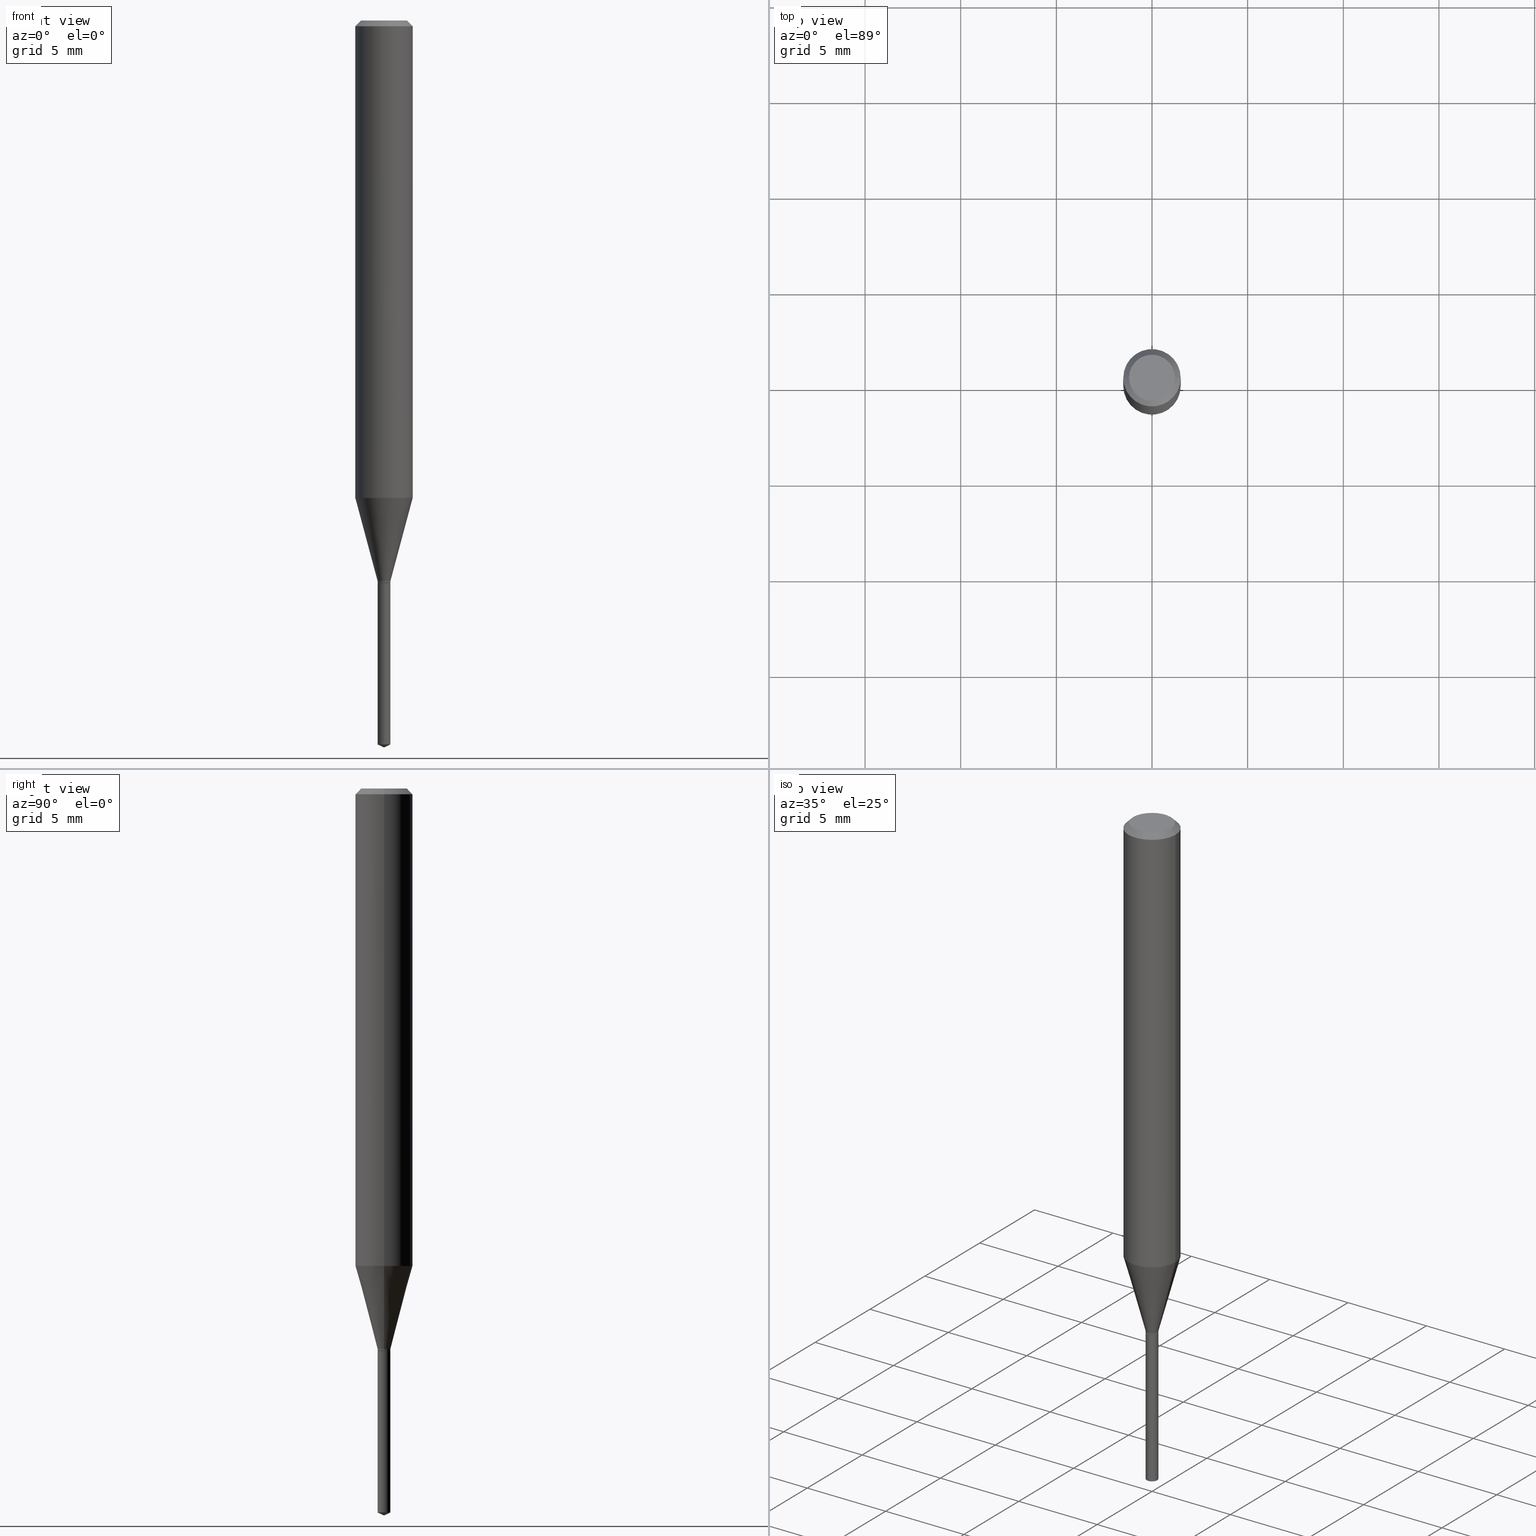
[diagram: canonical four-view strip — front | top / right | iso, engineering-drawing reading convention]
A machine part, canonical four-view strip (front | top / right | iso — engineering-drawing reading convention). The complete STEP part file that produces these views, byte-faithful:
ISO-10303-21;
HEADER;
FILE_DESCRIPTION (( 'STEP AP203' ),
    '1' );
FILE_NAME ('08108.STEP',
    '2024-04-24T11:45:50',
    ( '' ),
    ( '' ),
    'SwSTEP 2.0',
    'SolidWorks 2023',
    '' );
FILE_SCHEMA (( 'CONFIG_CONTROL_DESIGN' ));
ENDSEC;

DATA;
#1 = AXIS2_PLACEMENT_3D ( 'NONE', #486, #143, #264 ) ;
#2 = FACE_OUTER_BOUND ( 'NONE', #477, .T. ) ;
#3 = EDGE_LOOP ( 'NONE', ( #86, #103, #309, #352 ) ) ;
#4 = FACE_OUTER_BOUND ( 'NONE', #380, .T. ) ;
#5 = ORIENTED_EDGE ( 'NONE', *, *, #173, .T. ) ;
#6 = DIRECTION ( 'NONE',  ( -2.445468806185136597E-29, 3.491481338843145583E-15, 1.000000000000000000 ) ) ;
#7 = ORIENTED_EDGE ( 'NONE', *, *, #107, .F. ) ;
#8 = UNCERTAINTY_MEASURE_WITH_UNIT (LENGTH_MEASURE( 1.000000000000000082E-05 ), #432, 'distance_accuracy_value', 'NONE');
#9 = AXIS2_PLACEMENT_3D ( 'NONE', #40, #410, #181 ) ;
#10 = CONICAL_SURFACE ( 'NONE', #247, 84.42940631927504569, 1.134464013796319115 ) ;
#11 = DIRECTION ( 'NONE',  ( -6.982962677686267499E-15, -1.000000000000000000, 3.520397390770424288E-15 ) ) ;
#12 = APPROVAL_PERSON_ORGANIZATION ( #323, #16, #133 ) ;
#13 = AXIS2_PLACEMENT_3D ( 'NONE', #100, #281, #401 ) ;
#14 = VERTEX_POINT ( 'NONE', #363 ) ;
#15 = APPROVAL_STATUS ( 'not_yet_approved' ) ;
#16 = APPROVAL ( #473, 'UNSPECIFIED' ) ;
#17 = EDGE_LOOP ( 'NONE', ( #192, #57 ) ) ;
#18 = DIRECTION ( 'NONE',  ( 2.445468806185136597E-29, -3.491481338843145583E-15, -1.000000000000000000 ) ) ;
#19 = ORIENTED_EDGE ( 'NONE', *, *, #440, .T. ) ;
#20 = DATE_TIME_ROLE ( 'creation_date' ) ;
#21 = VECTOR ( 'NONE', #221, 39.37007874015748143 ) ;
#22 = LINE ( 'NONE', #430, #209 ) ;
#23 = LENGTH_MEASURE_WITH_UNIT ( LENGTH_MEASURE( 0.02539999999999999897 ), #319 );
#24 = DIRECTION ( 'NONE',  ( -2.445468806185136597E-29, 3.491481338843145583E-15, 1.000000000000000000 ) ) ;
#25 = EDGE_LOOP ( 'NONE', ( #158, #449, #89, #260 ) ) ;
#26 = APPLICATION_CONTEXT ( 'configuration controlled 3d designs of mechanical parts and assemblies' ) ;
#27 = CARTESIAN_POINT ( 'NONE',  ( 9.379164112036967186E-17, 0.01319999999999480096, -1.489944738912354127 ) ) ;
#28 = ADVANCED_BREP_SHAPE_REPRESENTATION ( '08108', ( #442, #290, #381 ), #110 ) ;
#29 = PERSON_AND_ORGANIZATION ( #258, #230 ) ;
#30 = CARTESIAN_POINT ( 'NONE',  ( 8.265746106709734507E-48, -1.180129479067563789E-33, -3.380025165646692144E-19 ) ) ;
#31 = EDGE_CURVE ( 'NONE', #371, #271, #225, .T. ) ;
#32 = PERSON_AND_ORGANIZATION_ROLE ( 'classification_officer' ) ;
#33 = CYLINDRICAL_SURFACE ( 'NONE', #65, 0.05905000000000006077 ) ;
#34 = PERSON_AND_ORGANIZATION ( #258, #230 ) ;
#35 = CARTESIAN_POINT ( 'NONE',  ( 0.01319999999999999993, -9.217510734545872876E-17, 6.436553344050634707E-31 ) ) ;
#36 = CONICAL_SURFACE ( 'NONE', #9, 0.01319999999999999993, 0.2617993877991500740 ) ;
#37 = CIRCLE ( 'NONE', #79, 0.05905000000000011628 ) ;
#38 = ADVANCED_FACE ( 'NONE', ( #171 ), #243, .T. ) ;
#39 = FACE_OUTER_BOUND ( 'NONE', #305, .T. ) ;
#40 = CARTESIAN_POINT ( 'NONE',  ( 2.820848267934554903E-29, -4.027423724355568083E-15, -1.153499999999999970 ) ) ;
#41 = CARTESIAN_POINT ( 'NONE',  ( 0.000000000000000000, 0.000000000000000000, 0.000000000000000000 ) ) ;
#42 = EDGE_CURVE ( 'NONE', #14, #433, #22, .T. ) ;
#43 = ORIENTED_EDGE ( 'NONE', *, *, #31, .T. ) ;
#44 = CIRCLE ( 'NONE', #270, 0.01319999999999999993 ) ;
#45 = AXIS2_PLACEMENT_3D ( 'NONE', #332, #327, #404 ) ;
#46 = CARTESIAN_POINT ( 'NONE',  ( 0.01269999999999999775, -4.130073275717555648E-15, -1.157499999999999973 ) ) ;
#47 = EDGE_LOOP ( 'NONE', ( #164, #203, #420, #126 ) ) ;
#48 = CC_DESIGN_PERSON_AND_ORGANIZATION_ASSIGNMENT ( #172, #251, ( #204 ) ) ;
#49 = CARTESIAN_POINT ( 'NONE',  ( 3.643609475682207716E-29, -5.202119845817557536E-15, -1.489944738912354127 ) ) ;
#50 = ORIENTED_EDGE ( 'NONE', *, *, #402, .F. ) ;
#51 = DIRECTION ( 'NONE',  ( -2.445468806185136597E-29, 3.491481338843145583E-15, 1.000000000000000000 ) ) ;
#52 = VERTEX_POINT ( 'NONE', #135 ) ;
#53 = CIRCLE ( 'NONE', #255, 0.01269999999999999775 ) ;
#54 = ADVANCED_FACE ( 'NONE', ( #393 ), #284, .F. ) ;
#55 = CC_DESIGN_APPROVAL ( #340, ( #461 ) ) ;
#56 = DIRECTION ( 'NONE',  ( -6.982962677686265133E-15, -1.000000000000000000, 0.000000000000000000 ) ) ;
#57 = ORIENTED_EDGE ( 'NONE', *, *, #277, .F. ) ;
#58 = CALENDAR_DATE ( 2024, 24, 4 ) ;
#59 = ORIENTED_EDGE ( 'NONE', *, *, #465, .T. ) ;
#60 = CALENDAR_DATE ( 2024, 24, 4 ) ;
#61 = ORIENTED_EDGE ( 'NONE', *, *, #349, .F. ) ;
#62 = CARTESIAN_POINT ( 'NONE',  ( 2.888098660104664204E-31, -4.123439461173780263E-17, -0.01181000000000007218 ) ) ;
#63 = AXIS2_PLACEMENT_3D ( 'NONE', #85, #90, #419 ) ;
#64 = DIRECTION ( 'NONE',  ( -2.445457056059012515E-29, 3.491498165692530705E-15, 1.000000000000000000 ) ) ;
#65 = AXIS2_PLACEMENT_3D ( 'NONE', #405, #483, #341 ) ;
#66 = CARTESIAN_POINT ( 'NONE',  ( -9.261917495037615480E-28, 1.322369467758159045E-13, 37.87397874015748300 ) ) ;
#67 = CARTESIAN_POINT ( 'NONE',  ( 0.04724000000000000421, -3.852183633974369345E-16, -3.380025165621689721E-19 ) ) ;
#68 = EDGE_CURVE ( 'NONE', #106, #197, #174, .T. ) ;
#69 = DIRECTION ( 'NONE',  ( 1.000000000000000000, -6.982962677686266711E-15, 0.000000000000000000 ) ) ;
#70 = EDGE_LOOP ( 'NONE', ( #317, #176, #252, #50 ) ) ;
#71 = SECURITY_CLASSIFICATION_LEVEL ( 'unclassified' ) ;
#72 = EDGE_CURVE ( 'NONE', #91, #318, #320, .T. ) ;
#73 = LINE ( 'NONE', #300, #302 ) ;
#74 = DIRECTION ( 'NONE',  ( -2.445468806185136597E-29, 3.491481338843145583E-15, 1.000000000000000000 ) ) ;
#75 = ORIENTED_EDGE ( 'NONE', *, *, #262, .T. ) ;
#76 = DIRECTION ( 'NONE',  ( 1.000000000000000000, -6.982962677686266711E-15, 4.876176775795935793E-29 ) ) ;
#77 = DIRECTION ( 'NONE',  ( 1.000000000000000000, -6.982962677686266711E-15, 4.876185090822587894E-29 ) ) ;
#78 = CIRCLE ( 'NONE', #391, 0.01319999999999999993 ) ;
#79 = AXIS2_PLACEMENT_3D ( 'NONE', #211, #170, #69 ) ;
#80 = CARTESIAN_POINT ( 'NONE',  ( -9.217510734542229325E-17, -0.01320000000000520410, -1.489944738912354127 ) ) ;
#81 = ADVANCED_FACE ( 'NONE', ( #474 ), #131, .T. ) ;
#82 = CARTESIAN_POINT ( 'NONE',  ( -0.01319999999999999993, -3.939742175578210590E-15, -1.153499999999999970 ) ) ;
#83 = EDGE_LOOP ( 'NONE', ( #59, #210, #348, #426 ) ) ;
#84 = EDGE_CURVE ( 'NONE', #318, #94, #322, .T. ) ;
#85 = CARTESIAN_POINT ( 'NONE',  ( 2.830630143159295633E-29, -4.041389649710940900E-15, -1.157499999999999973 ) ) ;
#86 = ORIENTED_EDGE ( 'NONE', *, *, #42, .F. ) ;
#87 = AXIS2_PLACEMENT_3D ( 'NONE', #293, #74, #77 ) ;
#88 = DIRECTION ( 'NONE',  ( -6.982962677686265133E-15, -1.000000000000000000, 0.000000000000000000 ) ) ;
#89 = ORIENTED_EDGE ( 'NONE', *, *, #84, .T. ) ;
#90 = DIRECTION ( 'NONE',  ( -2.445468806185136597E-29, 3.491481338843145583E-15, 1.000000000000000000 ) ) ;
#91 = VERTEX_POINT ( 'NONE', #67 ) ;
#92 = ADVANCED_FACE ( 'NONE', ( #212 ), #213, .F. ) ;
#93 = DIRECTION ( 'NONE',  ( -2.445468806185136877E-29, 3.491481338843145188E-15, 1.000000000000000000 ) ) ;
#94 = VERTEX_POINT ( 'NONE', #366 ) ;
#95 = VECTOR ( 'NONE', #149, 39.37007874015748854 ) ;
#96 = APPROVAL_ROLE ( '' ) ;
#97 = ORIENTED_EDGE ( 'NONE', *, *, #326, .F. ) ;
#98 = DATE_AND_TIME ( #58, #145 ) ;
#99 = DIRECTION ( 'NONE',  ( -6.982962677686267499E-15, -1.000000000000000000, 3.520397390770424288E-15 ) ) ;
#100 = CARTESIAN_POINT ( 'NONE',  ( 2.830630143159295633E-29, -4.041389649710940900E-15, -1.157499999999999973 ) ) ;
#101 = AXIS2_PLACEMENT_3D ( 'NONE', #335, #439, #342 ) ;
#102 = VECTOR ( 'NONE', #122, 39.37007874015748854 ) ;
#103 = ORIENTED_EDGE ( 'NONE', *, *, #107, .T. ) ;
#104 = AXIS2_PLACEMENT_3D ( 'NONE', #250, #24, #241 ) ;
#105 = MECHANICAL_CONTEXT ( 'NONE', #314, 'mechanical' ) ;
#106 = VERTEX_POINT ( 'NONE', #27 ) ;
#107 = EDGE_CURVE ( 'NONE', #14, #312, #399, .T. ) ;
#108 = DIRECTION ( 'NONE',  ( 1.000000000000000000, -6.982962677686250144E-15, 0.000000000000000000 ) ) ;
#109 = CARTESIAN_POINT ( 'NONE',  ( 2.830630143159295633E-29, -4.041389649710940900E-15, -1.157499999999999973 ) ) ;
#110 =( GEOMETRIC_REPRESENTATION_CONTEXT ( 3 ) GLOBAL_UNCERTAINTY_ASSIGNED_CONTEXT ( ( #8 ) ) GLOBAL_UNIT_ASSIGNED_CONTEXT ( ( #432, #476, #469 ) ) REPRESENTATION_CONTEXT ( 'NONE', 'WORKASPACE' ) );
#111 = AXIS2_PLACEMENT_3D ( 'NONE', #329, #288, #438 ) ;
#112 = CARTESIAN_POINT ( 'NONE',  ( 0.000000000000000000, 0.000000000000000000, 0.000000000000000000 ) ) ;
#113 = DIRECTION ( 'NONE',  ( 1.000000000000000000, -6.982962677686266711E-15, 0.000000000000000000 ) ) ;
#114 = CARTESIAN_POINT ( 'NONE',  ( 0.05905000000000011628, -3.842324483824382352E-15, -0.9823854704729667597 ) ) ;
#115 = LOCAL_TIME ( 7, 45, 50.00000000000000000, #482 ) ;
#116 = CARTESIAN_POINT ( 'NONE',  ( 2.830630143159295633E-29, -4.041389649710940900E-15, -1.157499999999999973 ) ) ;
#117 = DIRECTION ( 'NONE',  ( 1.000000000000000000, -6.982962677686252511E-15, 0.000000000000000000 ) ) ;
#118 = ORIENTED_EDGE ( 'NONE', *, *, #411, .T. ) ;
#119 = LINE ( 'NONE', #46, #102 ) ;
#120 = ORIENTED_EDGE ( 'NONE', *, *, #256, .F. ) ;
#121 = CONICAL_SURFACE ( 'NONE', #152, 0.01269999999999999775, 0.7853981633974141952 ) ;
#122 = DIRECTION ( 'NONE',  ( 0.7071067811865232589, -2.468850131082003836E-15, 0.7071067811865715536 ) ) ;
#123 = EDGE_CURVE ( 'NONE', #472, #433, #168, .T. ) ;
#124 = EDGE_LOOP ( 'NONE', ( #428, #279, #75, #357 ) ) ;
#125 = DIRECTION ( 'NONE',  ( -2.445457056059012515E-29, 3.491498165692530705E-15, 1.000000000000000000 ) ) ;
#126 = ORIENTED_EDGE ( 'NONE', *, *, #440, .F. ) ;
#127 = ORIENTED_EDGE ( 'NONE', *, *, #378, .F. ) ;
#128 = ADVANCED_FACE ( 'NONE', ( #227 ), #33, .T. ) ;
#129 = APPROVAL_DATE_TIME ( #98, #372 ) ;
#130 = AXIS2_PLACEMENT_3D ( 'NONE', #299, #178, #113 ) ;
#131 = CYLINDRICAL_SURFACE ( 'NONE', #13, 0.01319999999999999993 ) ;
#132 = EDGE_CURVE ( 'NONE', #195, #106, #353, .T. ) ;
#133 = APPROVAL_ROLE ( '' ) ;
#134 = DIRECTION ( 'NONE',  ( -2.445468806185136877E-29, 3.491481338843145188E-15, 1.000000000000000000 ) ) ;
#135 = CARTESIAN_POINT ( 'NONE',  ( -0.01269999999999999775, -3.948501495095296659E-15, -1.157499999999999973 ) ) ;
#136 = AXIS2_PLACEMENT_3D ( 'NONE', #289, #489, #108 ) ;
#137 = ORIENTED_EDGE ( 'NONE', *, *, #179, .F. ) ;
#138 = ADVANCED_FACE ( 'NONE', ( #39 ), #36, .T. ) ;
#139 = CARTESIAN_POINT ( 'NONE',  ( -0.01319999999999999993, -3.933632083235234933E-15, -1.153499999999999970 ) ) ;
#140 = CALENDAR_DATE ( 2024, 24, 4 ) ;
#141 = DIRECTION ( 'NONE',  ( 1.000000000000000000, -6.982962677686266711E-15, 4.876185090822587894E-29 ) ) ;
#142 = DATE_AND_TIME ( #140, #437 ) ;
#143 = DIRECTION ( 'NONE',  ( -2.445468806185136597E-29, 3.491481338843145583E-15, 1.000000000000000000 ) ) ;
#144 = CONICAL_SURFACE ( 'NONE', #337, 0.05904999999999999832, 0.7853981633974452814 ) ;
#145 = LOCAL_TIME ( 7, 45, 50.00000000000000000, #240 ) ;
#146 = CALENDAR_DATE ( 2024, 24, 4 ) ;
#147 = FACE_OUTER_BOUND ( 'NONE', #339, .T. ) ;
#148 = APPROVAL_STATUS ( 'not_yet_approved' ) ;
#149 = DIRECTION ( 'NONE',  ( -6.328713451373382789E-15, -0.9063077870366504918, 0.4226182617406981090 ) ) ;
#150 = EDGE_LOOP ( 'NONE', ( #183, #408, #396, #231 ) ) ;
#151 = DIRECTION ( 'NONE',  ( 1.000000000000000000, -6.982962677686267499E-15, 4.876176775795935232E-29 ) ) ;
#152 = AXIS2_PLACEMENT_3D ( 'NONE', #116, #422, #194 ) ;
#153 = EDGE_CURVE ( 'NONE', #94, #318, #414, .T. ) ;
#154 = CC_DESIGN_APPROVAL ( #16, ( #383 ) ) ;
#155 = CARTESIAN_POINT ( 'NONE',  ( -0.01269999999999999775, -3.951150722269407860E-15, -1.157499999999999973 ) ) ;
#156 = ORIENTED_EDGE ( 'NONE', *, *, #202, .T. ) ;
#157 = CARTESIAN_POINT ( 'NONE',  ( 2.830630143159295633E-29, -4.041389649710940900E-15, -1.157499999999999973 ) ) ;
#158 = ORIENTED_EDGE ( 'NONE', *, *, #193, .F. ) ;
#159 = CARTESIAN_POINT ( 'NONE',  ( 0.000000000000000000, 0.000000000000000000, 0.000000000000000000 ) ) ;
#160 = ORIENTED_EDGE ( 'NONE', *, *, #256, .T. ) ;
#161 = CARTESIAN_POINT ( 'NONE',  ( -0.05905000000000011628, -3.010405052240667150E-15, -0.9823854704729667597 ) ) ;
#162 = ORIENTED_EDGE ( 'NONE', *, *, #132, .F. ) ;
#163 = CARTESIAN_POINT ( 'NONE',  ( 0.000000000000000000, 0.000000000000000000, 0.000000000000000000 ) ) ;
#164 = ORIENTED_EDGE ( 'NONE', *, *, #68, .F. ) ;
#165 = DIRECTION ( 'NONE',  ( -2.438088387897960049E-29, 3.491481338843145188E-15, 1.000000000000000000 ) ) ;
#166 = EDGE_CURVE ( 'NONE', #312, #472, #336, .T. ) ;
#167 = CARTESIAN_POINT ( 'NONE',  ( 0.01319999999999999993, -4.119598831701026627E-15, -1.153499999999999970 ) ) ;
#168 = CIRCLE ( 'NONE', #101, 0.01319999999999999993 ) ;
#169 = CARTESIAN_POINT ( 'NONE',  ( 2.830630143159295633E-29, -4.041389649710940900E-15, -1.157499999999999973 ) ) ;
#170 = DIRECTION ( 'NONE',  ( -2.445468806185136597E-29, 3.491481338843145583E-15, 1.000000000000000000 ) ) ;
#171 = FACE_OUTER_BOUND ( 'NONE', #200, .T. ) ;
#172 = PERSON_AND_ORGANIZATION ( #258, #230 ) ;
#173 = EDGE_CURVE ( 'NONE', #312, #14, #198, .T. ) ;
#174 = LINE ( 'NONE', #364, #485 ) ;
#175 = AXIS2_PLACEMENT_3D ( 'NONE', #66, #244, #99 ) ;
#176 = ORIENTED_EDGE ( 'NONE', *, *, #369, .T. ) ;
#177 = DIRECTION ( 'NONE',  ( -2.445468806185136597E-29, 3.491481338843145583E-15, 1.000000000000000000 ) ) ;
#178 = DIRECTION ( 'NONE',  ( -2.445468806185136597E-29, 3.491481338843145583E-15, 1.000000000000000000 ) ) ;
#179 = EDGE_CURVE ( 'NONE', #433, #371, #261, .T. ) ;
#180 = PERSON_AND_ORGANIZATION ( #258, #230 ) ;
#181 = DIRECTION ( 'NONE',  ( 1.000000000000000000, -6.982962677686252511E-15, 0.000000000000000000 ) ) ;
#182 = CIRCLE ( 'NONE', #436, 0.04724000000000000421 ) ;
#183 = ORIENTED_EDGE ( 'NONE', *, *, #123, .T. ) ;
#184 = CARTESIAN_POINT ( 'NONE',  ( 9.379164112036970884E-17, 0.01319999999999595629, -1.157499999999999973 ) ) ;
#185 = CC_DESIGN_DATE_AND_TIME_ASSIGNMENT ( #205, #20, ( #444 ) ) ;
#186 = DIRECTION ( 'NONE',  ( -2.445468806185136597E-29, 3.491481338843145583E-15, 1.000000000000000000 ) ) ;
#187 = DIRECTION ( 'NONE',  ( -2.445468806185136597E-29, 3.491481338843145583E-15, 1.000000000000000000 ) ) ;
#188 = AXIS2_PLACEMENT_3D ( 'NONE', #234, #6, #117 ) ;
#189 = ORIENTED_EDGE ( 'NONE', *, *, #479, .T. ) ;
#190 = CC_DESIGN_SECURITY_CLASSIFICATION ( #461, ( #383 ) ) ;
#191 = DIRECTION ( 'NONE',  ( -2.445468806185136877E-29, 3.491481338843145188E-15, 1.000000000000000000 ) ) ;
#192 = ORIENTED_EDGE ( 'NONE', *, *, #219, .F. ) ;
#193 = EDGE_CURVE ( 'NONE', #91, #418, #311, .T. ) ;
#194 = DIRECTION ( 'NONE',  ( 1.000000000000000000, -6.982962677686250144E-15, 0.000000000000000000 ) ) ;
#195 = VERTEX_POINT ( 'NONE', #80 ) ;
#196 = CARTESIAN_POINT ( 'NONE',  ( 3.658648301569888039E-29, -5.223630405692595388E-15, -1.496099999999999985 ) ) ;
#197 = VERTEX_POINT ( 'NONE', #184 ) ;
#198 = CIRCLE ( 'NONE', #1, 0.01319999999999999993 ) ;
#199 = CYLINDRICAL_SURFACE ( 'NONE', #484, 0.01319999999999999993 ) ;
#200 = EDGE_LOOP ( 'NONE', ( #228, #464, #233, #97 ) ) ;
#201 = PERSON_AND_ORGANIZATION ( #258, #230 ) ;
#202 = EDGE_CURVE ( 'NONE', #301, #106, #73, .T. ) ;
#203 = ORIENTED_EDGE ( 'NONE', *, *, #349, .T. ) ;
#204 = PRODUCT ( '08108', '08108', '', ( #105 ) ) ;
#205 = DATE_AND_TIME ( #60, #374 ) ;
#206 = EDGE_LOOP ( 'NONE', ( #5, #360, #268, #467 ) ) ;
#207 = AXIS2_PLACEMENT_3D ( 'NONE', #157, #463, #275 ) ;
#208 = DIRECTION ( 'NONE',  ( 0.2588190451025213501, 1.565188264969621968E-15, 0.9659258262890682012 ) ) ;
#209 = VECTOR ( 'NONE', #134, 39.37007874015748143 ) ;
#210 = ORIENTED_EDGE ( 'NONE', *, *, #378, .T. ) ;
#211 = CARTESIAN_POINT ( 'NONE',  ( 2.402393023691149824E-29, -3.429980537707007431E-15, -0.9823854704729667597 ) ) ;
#212 = FACE_OUTER_BOUND ( 'NONE', #389, .T. ) ;
#213 = PLANE ( 'NONE',  #111 ) ;
#214 = VECTOR ( 'NONE', #269, 39.37007874015748854 ) ;
#215 = APPROVAL_PERSON_ORGANIZATION ( #403, #372, #96 ) ;
#216 = VECTOR ( 'NONE', #324, 39.37007874015748143 ) ;
#217 = CARTESIAN_POINT ( 'NONE',  ( 2.820848267934554903E-29, -4.027423724355568083E-15, -1.153499999999999970 ) ) ;
#218 = DIRECTION ( 'NONE',  ( 1.000000000000000000, -6.982962677686252511E-15, 0.000000000000000000 ) ) ;
#219 = EDGE_CURVE ( 'NONE', #276, #52, #470, .T. ) ;
#220 = APPROVAL_DATE_TIME ( #253, #16 ) ;
#221 = DIRECTION ( 'NONE',  ( -0.7071067811865453523, 2.468850131082234184E-15, -0.7071067811865496822 ) ) ;
#222 = CALENDAR_DATE ( 2024, 24, 4 ) ;
#223 = DIRECTION ( 'NONE',  ( -2.445457056059012515E-29, 3.491498165692530705E-15, 1.000000000000000000 ) ) ;
#224 = VECTOR ( 'NONE', #191, 39.37007874015748143 ) ;
#225 = CIRCLE ( 'NONE', #104, 0.05905000000000011628 ) ;
#226 = ADVANCED_FACE ( 'NONE', ( #338 ), #373, .T. ) ;
#227 = FACE_OUTER_BOUND ( 'NONE', #83, .T. ) ;
#228 = ORIENTED_EDGE ( 'NONE', *, *, #132, .T. ) ;
#229 = LINE ( 'NONE', #347, #421 ) ;
#230 = ORGANIZATION ( 'UNSPECIFIED', 'UNSPECIFIED', '' ) ;
#231 = ORIENTED_EDGE ( 'NONE', *, *, #479, .F. ) ;
#232 = FACE_OUTER_BOUND ( 'NONE', #70, .T. ) ;
#233 = ORIENTED_EDGE ( 'NONE', *, *, #481, .F. ) ;
#234 = CARTESIAN_POINT ( 'NONE',  ( 2.820848267934554903E-29, -4.027423724355568083E-15, -1.153499999999999970 ) ) ;
#235 = ORIENTED_EDGE ( 'NONE', *, *, #277, .T. ) ;
#236 = DIRECTION ( 'NONE',  ( -2.445457056059012515E-29, 3.491498165692530705E-15, 1.000000000000000000 ) ) ;
#237 = ORIENTED_EDGE ( 'NONE', *, *, #31, .F. ) ;
#238 = VECTOR ( 'NONE', #415, 39.37007874015747433 ) ;
#239 = CC_DESIGN_DATE_AND_TIME_ASSIGNMENT ( #142, #295, ( #461 ) ) ;
#240 = COORDINATED_UNIVERSAL_TIME_OFFSET ( 5, 0, .BEHIND. ) ;
#241 = DIRECTION ( 'NONE',  ( 1.000000000000000000, -6.982962677686266711E-15, 0.000000000000000000 ) ) ;
#242 = CARTESIAN_POINT ( 'NONE',  ( 2.830630143159295633E-29, -4.041389649710940900E-15, -1.157499999999999973 ) ) ;
#243 = CYLINDRICAL_SURFACE ( 'NONE', #45, 0.01319999999999999993 ) ;
#244 = DIRECTION ( 'NONE',  ( -2.445457056059012515E-29, 3.491498165692530705E-15, 1.000000000000000000 ) ) ;
#245 = CARTESIAN_POINT ( 'NONE',  ( 2.888098660104664204E-31, -4.123439461173780263E-17, -0.01181000000000007218 ) ) ;
#246 = AXIS2_PLACEMENT_3D ( 'NONE', #407, #223, #375 ) ;
#247 = AXIS2_PLACEMENT_3D ( 'NONE', #386, #125, #11 ) ;
#248 = DIRECTION ( 'NONE',  ( -1.000000000000000000, 6.982962677686266711E-15, 0.000000000000000000 ) ) ;
#249 = CLOSED_SHELL ( 'NONE', ( #358, #488, #128, #226, #316, #450, #138, #298, #376, #92, #54, #306 ) ) ;
#250 = CARTESIAN_POINT ( 'NONE',  ( 2.402393023691149824E-29, -3.429980537707007431E-15, -0.9823854704729667597 ) ) ;
#251 = PERSON_AND_ORGANIZATION_ROLE ( 'design_owner' ) ;
#252 = ORIENTED_EDGE ( 'NONE', *, *, #173, .F. ) ;
#253 = DATE_AND_TIME ( #222, #115 ) ;
#254 = LINE ( 'NONE', #257, #95 ) ;
#255 = AXIS2_PLACEMENT_3D ( 'NONE', #109, #186, #367 ) ;
#256 = EDGE_CURVE ( 'NONE', #301, #195, #254, .T. ) ;
#257 = CARTESIAN_POINT ( 'NONE',  ( 3.658648301569888039E-29, -5.223630405692593810E-15, -1.496099999999999985 ) ) ;
#258 = PERSON ( 'UNSPECIFIED', 'UNSPECIFIED', 'UNSPECIFIED', ('UNSPECIFIED'), ('UNSPECIFIED'), ('UNSPECIFIED') ) ;
#259 = DIRECTION ( 'NONE',  ( 6.439704144417038242E-15, 0.9063077870366533784, 0.4226182617406917807 ) ) ;
#260 = ORIENTED_EDGE ( 'NONE', *, *, #262, .F. ) ;
#261 = LINE ( 'NONE', #139, #238 ) ;
#262 = EDGE_CURVE ( 'NONE', #418, #94, #445, .T. ) ;
#263 = DATE_AND_TIME ( #146, #286 ) ;
#264 = DIRECTION ( 'NONE',  ( 1.000000000000000000, -6.982962677686252511E-15, 0.000000000000000000 ) ) ;
#265 = DIMENSIONAL_EXPONENTS ( 1.000000000000000000, 0.000000000000000000, 0.000000000000000000, 0.000000000000000000, 0.000000000000000000, 0.000000000000000000, 0.000000000000000000 ) ;
#266 = DIRECTION ( 'NONE',  ( 2.445468806185136597E-29, -3.491481338843145583E-15, -1.000000000000000000 ) ) ;
#267 = CARTESIAN_POINT ( 'NONE',  ( 0.01319999999999999993, -4.131819016386977152E-15, -1.156999999999999806 ) ) ;
#268 = ORIENTED_EDGE ( 'NONE', *, *, #123, .F. ) ;
#269 = DIRECTION ( 'NONE',  ( -0.7071067811865232589, 7.493145998870265808E-15, 0.7071067811865715536 ) ) ;
#270 = AXIS2_PLACEMENT_3D ( 'NONE', #427, #236, #56 ) ;
#271 = VERTEX_POINT ( 'NONE', #114 ) ;
#272 = AXIS2_PLACEMENT_3D ( 'NONE', #478, #446, #218 ) ;
#273 = CARTESIAN_POINT ( 'NONE',  ( 0.05905000000000006077, -4.123439461173744764E-16, 2.879382386107503023E-30 ) ) ;
#274 = ORIENTED_EDGE ( 'NONE', *, *, #369, .F. ) ;
#275 = DIRECTION ( 'NONE',  ( 6.982962677686265922E-15, 1.000000000000000000, -3.491498165692530705E-15 ) ) ;
#276 = VERTEX_POINT ( 'NONE', #377 ) ;
#277 = EDGE_CURVE ( 'NONE', #52, #276, #53, .T. ) ;
#278 = APPLICATION_PROTOCOL_DEFINITION ( 'international standard', 'config_control_design', 1994, #314 ) ;
#279 = ORIENTED_EDGE ( 'NONE', *, *, #291, .F. ) ;
#280 = PERSON_AND_ORGANIZATION_ROLE ( 'creator' ) ;
#281 = DIRECTION ( 'NONE',  ( -2.445457056059012515E-29, 3.491498165692530705E-15, 1.000000000000000000 ) ) ;
#282 = LINE ( 'NONE', #167, #351 ) ;
#283 = DIRECTION ( 'NONE',  ( 1.000000000000000000, -6.982962677686265922E-15, 4.876176775795935793E-29 ) ) ;
#284 = PLANE ( 'NONE',  #458 ) ;
#285 = AXIS2_PLACEMENT_3D ( 'NONE', #41, #187, #344 ) ;
#286 = LOCAL_TIME ( 7, 45, 50.00000000000000000, #447 ) ;
#287 = APPLICATION_PROTOCOL_DEFINITION ( 'international standard', 'config_control_design', 1994, #26 ) ;
#288 = DIRECTION ( 'NONE',  ( 2.438088387897960049E-29, -3.491481338843145188E-15, -1.000000000000000000 ) ) ;
#289 = CARTESIAN_POINT ( 'NONE',  ( 2.830630143159295633E-29, -4.041389649710940900E-15, -1.157499999999999973 ) ) ;
#290 = MANIFOLD_SOLID_BREP ( 'Body-Move/Copy2[2]', #249 ) ;
#291 = EDGE_CURVE ( 'NONE', #418, #91, #182, .T. ) ;
#292 = PERSON_AND_ORGANIZATION_ROLE ( 'design_supplier' ) ;
#293 = CARTESIAN_POINT ( 'NONE',  ( 8.265746106709734507E-48, -1.180129479067563789E-33, -3.380025165646692144E-19 ) ) ;
#294 = AXIS2_PLACEMENT_3D ( 'NONE', #62, #18, #248 ) ;
#295 = DATE_TIME_ROLE ( 'classification_date' ) ;
#296 = DIRECTION ( 'NONE',  ( 1.000000000000000000, -6.982962677686252511E-15, 0.000000000000000000 ) ) ;
#297 = APPROVAL_DATE_TIME ( #263, #340 ) ;
#298 = ADVANCED_FACE ( 'NONE', ( #147 ), #441, .T. ) ;
#299 = CARTESIAN_POINT ( 'NONE',  ( 2.888098660104664204E-31, -4.123439461173780263E-17, -0.01181000000000007218 ) ) ;
#300 = CARTESIAN_POINT ( 'NONE',  ( 3.658675741637279389E-29, -5.223591451536267840E-15, -1.496099999999999985 ) ) ;
#301 = VERTEX_POINT ( 'NONE', #196 ) ;
#302 = VECTOR ( 'NONE', #259, 39.37007874015748854 ) ;
#303 = FACE_OUTER_BOUND ( 'NONE', #355, .T. ) ;
#304 = CARTESIAN_POINT ( 'NONE',  ( 0.05904999999999999832, -4.535783407291118600E-16, -0.01181000000000007218 ) ) ;
#305 = EDGE_LOOP ( 'NONE', ( #137, #385, #189, #237 ) ) ;
#306 = ADVANCED_FACE ( 'NONE', ( #308 ), #361, .T. ) ;
#307 = PRODUCT_DEFINITION_SHAPE ( 'NONE', 'NONE',  #444 ) ;
#308 = FACE_OUTER_BOUND ( 'NONE', #387, .T. ) ;
#309 = ORIENTED_EDGE ( 'NONE', *, *, #166, .T. ) ;
#310 = CARTESIAN_POINT ( 'NONE',  ( -9.217510734543039140E-17, -0.01320000000000404183, -1.157499999999999973 ) ) ;
#311 = CIRCLE ( 'NONE', #87, 0.04724000000000000421 ) ;
#312 = VERTEX_POINT ( 'NONE', #267 ) ;
#313 = CLOSED_SHELL ( 'NONE', ( #38, #328, #455, #81, #435 ) ) ;
#314 = APPLICATION_CONTEXT ( 'configuration controlled 3d designs of mechanical parts and assemblies' ) ;
#315 = CARTESIAN_POINT ( 'NONE',  ( 2.888098660104664204E-31, -4.123439461173780263E-17, -0.01181000000000007218 ) ) ;
#316 = ADVANCED_FACE ( 'NONE', ( #350 ), #199, .T. ) ;
#317 = ORIENTED_EDGE ( 'NONE', *, *, #219, .T. ) ;
#318 = VERTEX_POINT ( 'NONE', #304 ) ;
#319 =( LENGTH_UNIT ( ) NAMED_UNIT ( * ) SI_UNIT ( $, .METRE. ) );
#320 = LINE ( 'NONE', #434, #216 ) ;
#321 = CONICAL_SURFACE ( 'NONE', #175, 84.42940631927504569, 1.134464013796319115 ) ;
#322 = CIRCLE ( 'NONE', #331, 0.05904999999999999832 ) ;
#323 = PERSON_AND_ORGANIZATION ( #258, #230 ) ;
#324 = DIRECTION ( 'NONE',  ( 0.7071067811865453523, -7.319954787623248157E-15, -0.7071067811865496822 ) ) ;
#325 = DESIGN_CONTEXT ( 'detailed design', #26, 'design' ) ;
#326 = EDGE_CURVE ( 'NONE', #195, #424, #452, .T. ) ;
#327 = DIRECTION ( 'NONE',  ( -2.445457056059012515E-29, 3.491498165692530705E-15, 1.000000000000000000 ) ) ;
#328 = ADVANCED_FACE ( 'NONE', ( #303 ), #10, .T. ) ;
#329 = CARTESIAN_POINT ( 'NONE',  ( 4.132873053354867254E-48, -5.900647395337818946E-34, -1.690012582823346072E-19 ) ) ;
#330 = AXIS2_PLACEMENT_3D ( 'NONE', #217, #480, #296 ) ;
#331 = AXIS2_PLACEMENT_3D ( 'NONE', #245, #431, #398 ) ;
#332 = CARTESIAN_POINT ( 'NONE',  ( 2.830630143159295633E-29, -4.041389649710940900E-15, -1.157499999999999973 ) ) ;
#333 = CC_DESIGN_PERSON_AND_ORGANIZATION_ASSIGNMENT ( #487, #292, ( #383 ) ) ;
#334 = COORDINATED_UNIVERSAL_TIME_OFFSET ( 5, 0, .BEHIND. ) ;
#335 = CARTESIAN_POINT ( 'NONE',  ( 2.820848267934554903E-29, -4.027423724355568083E-15, -1.153499999999999970 ) ) ;
#336 = LINE ( 'NONE', #35, #384 ) ;
#337 = AXIS2_PLACEMENT_3D ( 'NONE', #315, #266, #390 ) ;
#338 = FACE_OUTER_BOUND ( 'NONE', #150, .T. ) ;
#339 = EDGE_LOOP ( 'NONE', ( #127, #43, #118, #454 ) ) ;
#340 = APPROVAL ( #148, 'UNSPECIFIED' ) ;
#341 = DIRECTION ( 'NONE',  ( 1.000000000000000000, -6.982962677686266711E-15, 4.876176775795935793E-29 ) ) ;
#342 = DIRECTION ( 'NONE',  ( 1.000000000000000000, -6.982962677686252511E-15, 0.000000000000000000 ) ) ;
#343 = CONICAL_SURFACE ( 'NONE', #294, 0.05904999999999999832, 0.7853981633974452814 ) ;
#344 = DIRECTION ( 'NONE',  ( 1.000000000000000000, -6.982962677686267499E-15, 4.876176775795935232E-29 ) ) ;
#345 = ORIENTED_EDGE ( 'NONE', *, *, #481, .T. ) ;
#346 = DIRECTION ( 'NONE',  ( -2.445457056059012515E-29, 3.491498165692530705E-15, 1.000000000000000000 ) ) ;
#347 = CARTESIAN_POINT ( 'NONE',  ( -0.05905000000000006077, 4.195754854663395916E-16, -2.904631170795524694E-30 ) ) ;
#348 = ORIENTED_EDGE ( 'NONE', *, *, #84, .F. ) ;
#349 = EDGE_CURVE ( 'NONE', #106, #195, #78, .T. ) ;
#350 = FACE_OUTER_BOUND ( 'NONE', #206, .T. ) ;
#351 = VECTOR ( 'NONE', #208, 39.37007874015747433 ) ;
#352 = ORIENTED_EDGE ( 'NONE', *, *, #395, .F. ) ;
#353 = CIRCLE ( 'NONE', #246, 0.01319999999999999993 ) ;
#354 = DIRECTION ( 'NONE',  ( 0.000000000000000000, 0.000000000000000000, 1.000000000000000000 ) ) ;
#355 = EDGE_LOOP ( 'NONE', ( #120, #156, #162 ) ) ;
#356 = DIRECTION ( 'NONE',  ( -2.445457056059012515E-29, 3.491498165692530705E-15, 1.000000000000000000 ) ) ;
#357 = ORIENTED_EDGE ( 'NONE', *, *, #153, .T. ) ;
#358 = ADVANCED_FACE ( 'NONE', ( #232 ), #121, .T. ) ;
#359 = FACE_OUTER_BOUND ( 'NONE', #25, .T. ) ;
#360 = ORIENTED_EDGE ( 'NONE', *, *, #42, .T. ) ;
#361 = CONICAL_SURFACE ( 'NONE', #63, 0.01269999999999999775, 0.7853981633974141952 ) ;
#362 = CC_DESIGN_PERSON_AND_ORGANIZATION_ASSIGNMENT ( #29, #32, ( #461 ) ) ;
#363 = CARTESIAN_POINT ( 'NONE',  ( -0.01319999999999999993, -3.939742175578210590E-15, -1.156999999999999806 ) ) ;
#364 = CARTESIAN_POINT ( 'NONE',  ( 9.379164112036151208E-17, 0.01319999999999595629, -1.157499999999999973 ) ) ;
#365 = CC_DESIGN_PERSON_AND_ORGANIZATION_ASSIGNMENT ( #201, #280, ( #444 ) ) ;
#366 = CARTESIAN_POINT ( 'NONE',  ( -0.05904999999999999832, -1.316031980693032298E-15, -0.01181000000000007218 ) ) ;
#367 = DIRECTION ( 'NONE',  ( 1.000000000000000000, -6.982962677686250144E-15, 0.000000000000000000 ) ) ;
#368 = PERSON_AND_ORGANIZATION_ROLE ( 'creator' ) ;
#369 = EDGE_CURVE ( 'NONE', #52, #14, #460, .T. ) ;
#370 = DIRECTION ( 'NONE',  ( -2.445468806185136877E-29, 3.491481338843145188E-15, 1.000000000000000000 ) ) ;
#371 = VERTEX_POINT ( 'NONE', #161 ) ;
#372 = APPROVAL ( #15, 'UNSPECIFIED' ) ;
#373 = CONICAL_SURFACE ( 'NONE', #330, 0.01319999999999999993, 0.2617993877991500740 ) ;
#374 = LOCAL_TIME ( 7, 45, 50.00000000000000000, #394 ) ;
#375 = DIRECTION ( 'NONE',  ( -6.982962677686265133E-15, -1.000000000000000000, 0.000000000000000000 ) ) ;
#376 = ADVANCED_FACE ( 'NONE', ( #382 ), #144, .T. ) ;
#377 = CARTESIAN_POINT ( 'NONE',  ( 0.01269999999999999775, -4.130073275717555648E-15, -1.157499999999999973 ) ) ;
#378 = EDGE_CURVE ( 'NONE', #371, #94, #229, .T. ) ;
#379 = CYLINDRICAL_SURFACE ( 'NONE', #285, 0.01319999999999999993 ) ;
#380 = EDGE_LOOP ( 'NONE', ( #345, #19 ) ) ;
#381 = AXIS2_PLACEMENT_3D ( 'NONE', #163, #354, #400 ) ;
#382 = FACE_OUTER_BOUND ( 'NONE', #124, .T. ) ;
#383 = PRODUCT_DEFINITION_FORMATION_WITH_SPECIFIED_SOURCE ( 'ANY', '', #204, .NOT_KNOWN. ) ;
#384 = VECTOR ( 'NONE', #370, 39.37007874015748143 ) ;
#385 = ORIENTED_EDGE ( 'NONE', *, *, #395, .T. ) ;
#386 = CARTESIAN_POINT ( 'NONE',  ( -9.261917495037615480E-28, 1.322369467758159045E-13, 37.87397874015748300 ) ) ;
#387 = EDGE_LOOP ( 'NONE', ( #274, #235, #475, #7 ) ) ;
#388 = CARTESIAN_POINT ( 'NONE',  ( -9.217510734543039140E-17, -0.01320000000000404183, -1.157499999999999973 ) ) ;
#389 = EDGE_LOOP ( 'NONE', ( #462, #392 ) ) ;
#390 = DIRECTION ( 'NONE',  ( -1.000000000000000000, 6.982962677686266711E-15, 0.000000000000000000 ) ) ;
#391 = AXIS2_PLACEMENT_3D ( 'NONE', #49, #346, #88 ) ;
#392 = ORIENTED_EDGE ( 'NONE', *, *, #193, .T. ) ;
#393 = FACE_OUTER_BOUND ( 'NONE', #17, .T. ) ;
#394 = COORDINATED_UNIVERSAL_TIME_OFFSET ( 5, 0, .BEHIND. ) ;
#395 = EDGE_CURVE ( 'NONE', #433, #472, #406, .T. ) ;
#396 = ORIENTED_EDGE ( 'NONE', *, *, #465, .F. ) ;
#397 = DIRECTION ( 'NONE',  ( -6.982962677686265133E-15, -1.000000000000000000, 0.000000000000000000 ) ) ;
#398 = DIRECTION ( 'NONE',  ( 1.000000000000000000, -6.982962677686266711E-15, 0.000000000000000000 ) ) ;
#399 = CIRCLE ( 'NONE', #272, 0.01319999999999999993 ) ;
#400 = DIRECTION ( 'NONE',  ( 1.000000000000000000, 0.000000000000000000, 0.000000000000000000 ) ) ;
#401 = DIRECTION ( 'NONE',  ( -6.982962677686265133E-15, -1.000000000000000000, 0.000000000000000000 ) ) ;
#402 = EDGE_CURVE ( 'NONE', #276, #312, #119, .T. ) ;
#403 = PERSON_AND_ORGANIZATION ( #258, #230 ) ;
#404 = DIRECTION ( 'NONE',  ( -6.982962677686265133E-15, -1.000000000000000000, 0.000000000000000000 ) ) ;
#405 = CARTESIAN_POINT ( 'NONE',  ( 0.000000000000000000, 0.000000000000000000, 0.000000000000000000 ) ) ;
#406 = CIRCLE ( 'NONE', #188, 0.01319999999999999993 ) ;
#407 = CARTESIAN_POINT ( 'NONE',  ( 3.643609475682207716E-29, -5.202119845817557536E-15, -1.489944738912354127 ) ) ;
#408 = ORIENTED_EDGE ( 'NONE', *, *, #179, .T. ) ;
#409 = DIRECTION ( 'NONE',  ( -2.445468806185136597E-29, 3.491481338843145583E-15, 1.000000000000000000 ) ) ;
#410 = DIRECTION ( 'NONE',  ( -2.445468806185136597E-29, 3.491481338843145583E-15, 1.000000000000000000 ) ) ;
#411 = EDGE_CURVE ( 'NONE', #271, #318, #456, .T. ) ;
#412 = CIRCLE ( 'NONE', #451, 0.01319999999999999993 ) ;
#413 = SHAPE_DEFINITION_REPRESENTATION ( #307, #28 ) ;
#414 = CIRCLE ( 'NONE', #130, 0.05904999999999999832 ) ;
#415 = DIRECTION ( 'NONE',  ( -0.2588190451025213501, 5.211531920934551042E-15, 0.9659258262890682012 ) ) ;
#416 = CC_DESIGN_PERSON_AND_ORGANIZATION_ASSIGNMENT ( #180, #368, ( #383 ) ) ;
#417 = PLANE ( 'NONE',  #207 ) ;
#418 = VERTEX_POINT ( 'NONE', #425 ) ;
#419 = DIRECTION ( 'NONE',  ( 1.000000000000000000, -6.982962677686250144E-15, 0.000000000000000000 ) ) ;
#420 = ORIENTED_EDGE ( 'NONE', *, *, #326, .T. ) ;
#421 = VECTOR ( 'NONE', #93, 39.37007874015748143 ) ;
#422 = DIRECTION ( 'NONE',  ( -2.445468806185136597E-29, 3.491481338843145583E-15, 1.000000000000000000 ) ) ;
#423 = CC_DESIGN_APPROVAL ( #372, ( #444 ) ) ;
#424 = VERTEX_POINT ( 'NONE', #388 ) ;
#425 = CARTESIAN_POINT ( 'NONE',  ( -0.04724000000000000421, 3.504923541997677355E-16, -3.380025165670481712E-19 ) ) ;
#426 = ORIENTED_EDGE ( 'NONE', *, *, #411, .F. ) ;
#427 = CARTESIAN_POINT ( 'NONE',  ( 2.830630143159295633E-29, -4.041389649710940900E-15, -1.157499999999999973 ) ) ;
#428 = ORIENTED_EDGE ( 'NONE', *, *, #72, .F. ) ;
#429 = VECTOR ( 'NONE', #453, 39.37007874015748143 ) ;
#430 = CARTESIAN_POINT ( 'NONE',  ( -0.01319999999999999993, 9.379164112033322402E-17, -6.492994319136474913E-31 ) ) ;
#431 = DIRECTION ( 'NONE',  ( -2.445468806185136597E-29, 3.491481338843145583E-15, 1.000000000000000000 ) ) ;
#432 =( CONVERSION_BASED_UNIT ( 'INCH', #23 ) LENGTH_UNIT ( ) NAMED_UNIT ( #265 ) );
#433 = VERTEX_POINT ( 'NONE', #82 ) ;
#434 = CARTESIAN_POINT ( 'NONE',  ( 0.05904999999999999832, -4.463468013801466955E-16, -0.01181000000000007218 ) ) ;
#435 = ADVANCED_FACE ( 'NONE', ( #4 ), #417, .F. ) ;
#436 = AXIS2_PLACEMENT_3D ( 'NONE', #30, #177, #141 ) ;
#437 = LOCAL_TIME ( 7, 45, 50.00000000000000000, #334 ) ;
#438 = DIRECTION ( 'NONE',  ( -1.000000000000000000, 6.982962677686265922E-15, -4.876176775795935793E-29 ) ) ;
#439 = DIRECTION ( 'NONE',  ( -2.445468806185136597E-29, 3.491481338843145583E-15, 1.000000000000000000 ) ) ;
#440 = EDGE_CURVE ( 'NONE', #197, #424, #44, .T. ) ;
#441 = CYLINDRICAL_SURFACE ( 'NONE', #459, 0.05905000000000006077 ) ;
#442 = MANIFOLD_SOLID_BREP ( 'Body-Move/Copy2[1]', #313 ) ;
#443 = APPROVAL_ROLE ( '' ) ;
#444 = PRODUCT_DEFINITION ( 'UNKNOWN', '', #383, #325 ) ;
#445 = LINE ( 'NONE', #448, #21 ) ;
#446 = DIRECTION ( 'NONE',  ( -2.445468806185136597E-29, 3.491481338843145583E-15, 1.000000000000000000 ) ) ;
#447 = COORDINATED_UNIVERSAL_TIME_OFFSET ( 5, 0, .BEHIND. ) ;
#448 = CARTESIAN_POINT ( 'NONE',  ( -0.05904999999999999832, 3.711095515056362547E-16, -0.01181000000000007218 ) ) ;
#449 = ORIENTED_EDGE ( 'NONE', *, *, #72, .T. ) ;
#450 = ADVANCED_FACE ( 'NONE', ( #490 ), #379, .T. ) ;
#451 = AXIS2_PLACEMENT_3D ( 'NONE', #242, #356, #397 ) ;
#452 = LINE ( 'NONE', #310, #429 ) ;
#453 = DIRECTION ( 'NONE',  ( -2.445457056059012515E-29, 3.491498165692530705E-15, 1.000000000000000000 ) ) ;
#454 = ORIENTED_EDGE ( 'NONE', *, *, #153, .F. ) ;
#455 = ADVANCED_FACE ( 'NONE', ( #2 ), #321, .T. ) ;
#456 = LINE ( 'NONE', #273, #224 ) ;
#457 = ORIENTED_EDGE ( 'NONE', *, *, #202, .F. ) ;
#458 = AXIS2_PLACEMENT_3D ( 'NONE', #169, #165, #283 ) ;
#459 = AXIS2_PLACEMENT_3D ( 'NONE', #112, #409, #76 ) ;
#460 = LINE ( 'NONE', #155, #214 ) ;
#461 = SECURITY_CLASSIFICATION ( '', '', #71 ) ;
#462 = ORIENTED_EDGE ( 'NONE', *, *, #291, .T. ) ;
#463 = DIRECTION ( 'NONE',  ( 2.445457056059012235E-29, -3.491498165692530705E-15, -1.000000000000000000 ) ) ;
#464 = ORIENTED_EDGE ( 'NONE', *, *, #68, .T. ) ;
#465 = EDGE_CURVE ( 'NONE', #271, #371, #37, .T. ) ;
#466 = CARTESIAN_POINT ( 'NONE',  ( 0.01319999999999999993, -4.119598831701026627E-15, -1.153499999999999970 ) ) ;
#467 = ORIENTED_EDGE ( 'NONE', *, *, #166, .F. ) ;
#468 = PRODUCT_RELATED_PRODUCT_CATEGORY ( 'detail', '', ( #204 ) ) ;
#469 =( NAMED_UNIT ( * ) SI_UNIT ( $, .STERADIAN. ) SOLID_ANGLE_UNIT ( ) );
#470 = CIRCLE ( 'NONE', #136, 0.01269999999999999775 ) ;
#471 = APPROVAL_PERSON_ORGANIZATION ( #34, #340, #443 ) ;
#472 = VERTEX_POINT ( 'NONE', #466 ) ;
#473 = APPROVAL_STATUS ( 'not_yet_approved' ) ;
#474 = FACE_OUTER_BOUND ( 'NONE', #47, .T. ) ;
#475 = ORIENTED_EDGE ( 'NONE', *, *, #402, .T. ) ;
#476 =( NAMED_UNIT ( * ) PLANE_ANGLE_UNIT ( ) SI_UNIT ( $, .RADIAN. ) );
#477 = EDGE_LOOP ( 'NONE', ( #457, #160, #61 ) ) ;
#478 = CARTESIAN_POINT ( 'NONE',  ( 2.829407408756202832E-29, -4.039643909041518608E-15, -1.156999999999999806 ) ) ;
#479 = EDGE_CURVE ( 'NONE', #472, #271, #282, .T. ) ;
#480 = DIRECTION ( 'NONE',  ( -2.445468806185136597E-29, 3.491481338843145583E-15, 1.000000000000000000 ) ) ;
#481 = EDGE_CURVE ( 'NONE', #424, #197, #412, .T. ) ;
#482 = COORDINATED_UNIVERSAL_TIME_OFFSET ( 5, 0, .BEHIND. ) ;
#483 = DIRECTION ( 'NONE',  ( -2.445468806185136597E-29, 3.491481338843145583E-15, 1.000000000000000000 ) ) ;
#484 = AXIS2_PLACEMENT_3D ( 'NONE', #159, #51, #151 ) ;
#485 = VECTOR ( 'NONE', #64, 39.37007874015748143 ) ;
#486 = CARTESIAN_POINT ( 'NONE',  ( 2.829407408756202832E-29, -4.039643909041518608E-15, -1.156999999999999806 ) ) ;
#487 = PERSON_AND_ORGANIZATION ( #258, #230 ) ;
#488 = ADVANCED_FACE ( 'NONE', ( #359 ), #343, .T. ) ;
#489 = DIRECTION ( 'NONE',  ( -2.445468806185136597E-29, 3.491481338843145583E-15, 1.000000000000000000 ) ) ;
#490 = FACE_OUTER_BOUND ( 'NONE', #3, .T. ) ;
ENDSEC;
END-ISO-10303-21;
